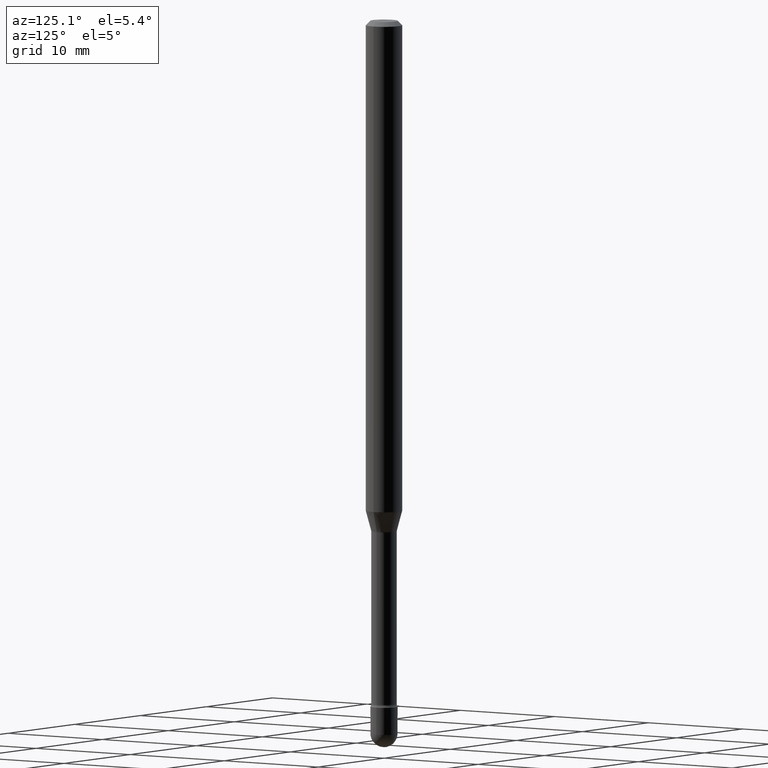
[diagram: clean part render]
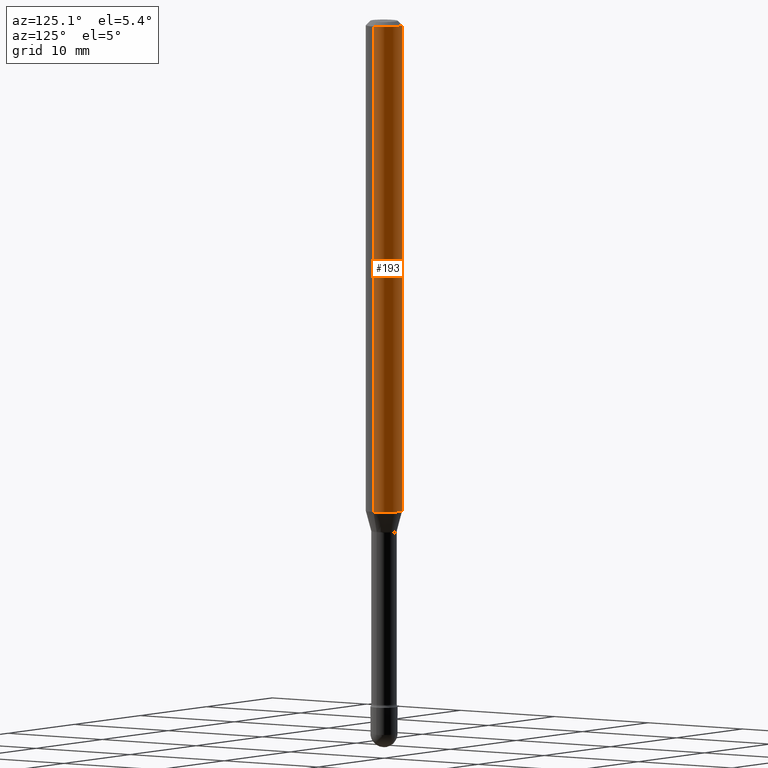
[diagram: same view with one face highlighted and labeled with its STEP entity id]
A machine part, auxiliary view. The second image highlights one B-rep face of the part: STEP entity #193.
In plain terms, the highlighted cylindrical surface (edge-blend (fillet) strip) has radius 1.5875 mm, axis along (-0, 0, 1).
Its self-contained STEP definition (entity closure, byte-faithful):
#9 = CARTESIAN_POINT ( 'NONE',  ( 0.06250000000000000000, -4.888073874380391431E-16, -0.01500000000000008271 ) ) ;
#10 = DIRECTION ( 'NONE',  ( 1.000000000000000000, -6.982962677686266711E-15, 4.852736867747366207E-29 ) ) ;
#22 = FACE_OUTER_BOUND ( 'NONE', #107, .T. ) ;
#31 = ORIENTED_EDGE ( 'NONE', *, *, #362, .F. ) ;
#40 = ORIENTED_EDGE ( 'NONE', *, *, #445, .T. ) ;
#53 = AXIS2_PLACEMENT_3D ( 'NONE', #346, #476, #510 ) ;
#84 = VERTEX_POINT ( 'NONE', #451 ) ;
#96 = ORIENTED_EDGE ( 'NONE', *, *, #352, .F. ) ;
#107 = EDGE_LOOP ( 'NONE', ( #172, #40, #31, #96 ) ) ;
#111 = EDGE_CURVE ( 'NONE', #84, #436, #296, .T. ) ;
#124 = AXIS2_PLACEMENT_3D ( 'NONE', #411, #291, #10 ) ;
#163 = CARTESIAN_POINT ( 'NONE',  ( 4.122662883600555440E-29, -5.886069978904029842E-15, -1.685837444817705366 ) ) ;
#169 = DIRECTION ( 'NONE',  ( -2.445468806185136877E-29, 3.491481338843145188E-15, 1.000000000000000000 ) ) ;
#172 = ORIENTED_EDGE ( 'NONE', *, *, #111, .T. ) ;
#188 = DIRECTION ( 'NONE',  ( 1.000000000000000000, -6.982962677686262766E-15, 0.000000000000000000 ) ) ;
#189 = CARTESIAN_POINT ( 'NONE',  ( -0.06250000000000000000, -5.441980769053966437E-15, -1.685837444817705366 ) ) ;
#193 = ADVANCED_FACE ( 'NONE', ( #22 ), #195, .T. ) ;
#195 = CYLINDRICAL_SURFACE ( 'NONE', #124, 0.06250000000000000000 ) ;
#217 = VERTEX_POINT ( 'NONE', #9 ) ;
#222 = LINE ( 'NONE', #407, #448 ) ;
#291 = DIRECTION ( 'NONE',  ( -2.445468806185136597E-29, 3.491481338843145583E-15, 1.000000000000000000 ) ) ;
#296 = CIRCLE ( 'NONE', #364, 0.06250000000000000000 ) ;
#310 = CARTESIAN_POINT ( 'NONE',  ( -0.06250000000000000000, -2.525131889643276042E-15, -0.01500000000000008271 ) ) ;
#346 = CARTESIAN_POINT ( 'NONE',  ( 3.668203209277725232E-31, -5.237222008264747365E-17, -0.01500000000000008271 ) ) ;
#349 = LINE ( 'NONE', #428, #360 ) ;
#352 = EDGE_CURVE ( 'NONE', #84, #217, #349, .T. ) ;
#360 = VECTOR ( 'NONE', #169, 39.37007874015748143 ) ;
#362 = EDGE_CURVE ( 'NONE', #217, #389, #559, .T. ) ;
#364 = AXIS2_PLACEMENT_3D ( 'NONE', #163, #485, #188 ) ;
#389 = VERTEX_POINT ( 'NONE', #310 ) ;
#407 = CARTESIAN_POINT ( 'NONE',  ( -0.06250000000000000000, 4.440892098500642925E-16, 4.780733988912429571E-16 ) ) ;
#411 = CARTESIAN_POINT ( 'NONE',  ( -1.169113584055446105E-44, 1.669184350826100908E-30, 4.780733988912460139E-16 ) ) ;
#428 = CARTESIAN_POINT ( 'NONE',  ( 0.06250000000000000000, -4.364351673553899931E-16, 4.780733988912490708E-16 ) ) ;
#436 = VERTEX_POINT ( 'NONE', #189 ) ;
#445 = EDGE_CURVE ( 'NONE', #436, #389, #222, .T. ) ;
#448 = VECTOR ( 'NONE', #479, 39.37007874015748143 ) ;
#451 = CARTESIAN_POINT ( 'NONE',  ( 0.06250000000000000000, -6.322505146259420722E-15, -1.685837444817705366 ) ) ;
#476 = DIRECTION ( 'NONE',  ( -2.445468806185136597E-29, 3.491481338843145583E-15, 1.000000000000000000 ) ) ;
#479 = DIRECTION ( 'NONE',  ( -2.445468806185136877E-29, 3.491481338843145188E-15, 1.000000000000000000 ) ) ;
#485 = DIRECTION ( 'NONE',  ( -2.445468806185136597E-29, 3.491481338843145583E-15, 1.000000000000000000 ) ) ;
#510 = DIRECTION ( 'NONE',  ( 1.000000000000000000, -6.982962677686266711E-15, 0.000000000000000000 ) ) ;
#559 = CIRCLE ( 'NONE', #53, 0.06250000000000000000 ) ;